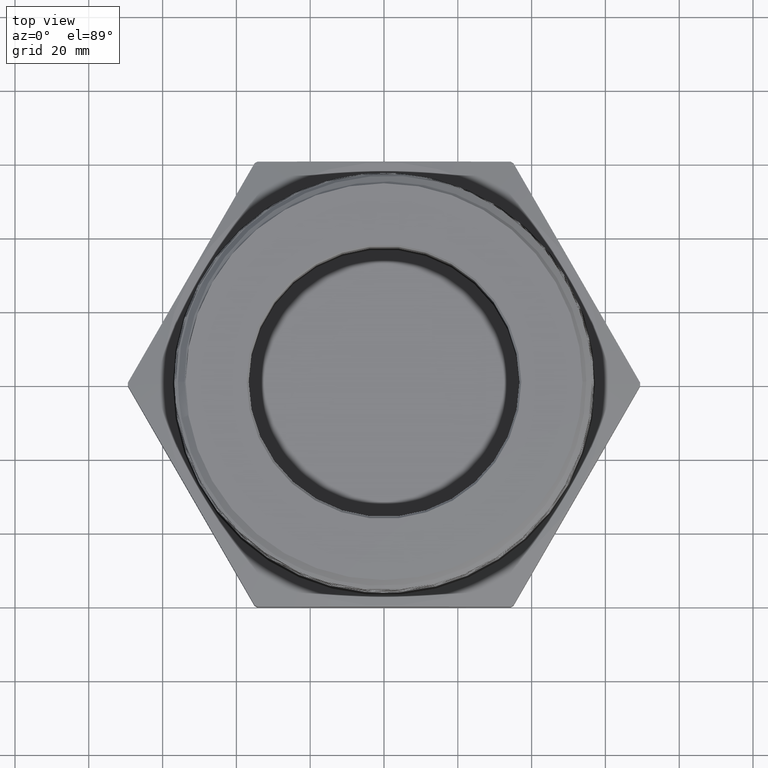
[diagram: clean part render]
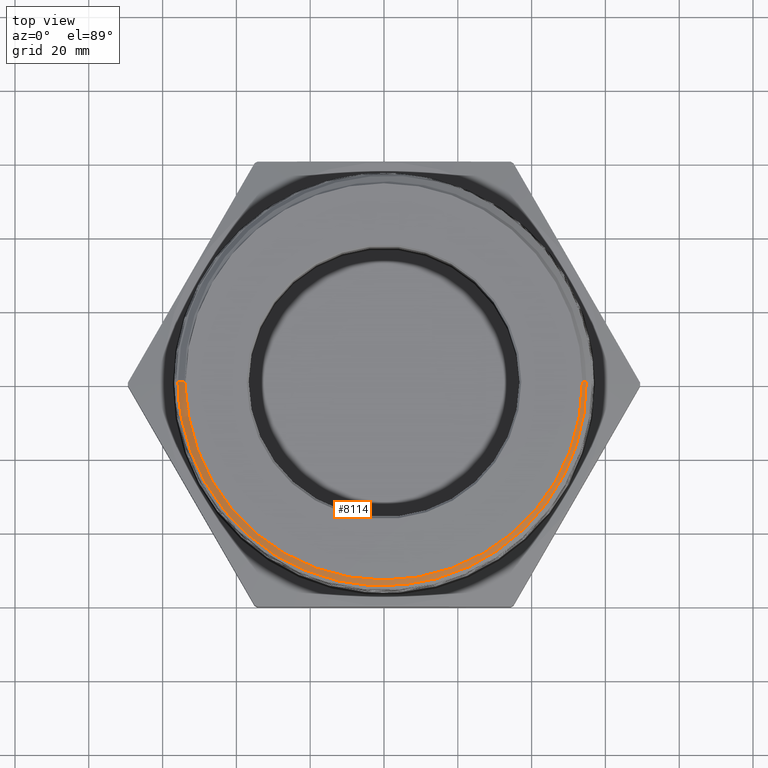
[diagram: same view with one face highlighted and labeled with its STEP entity id]
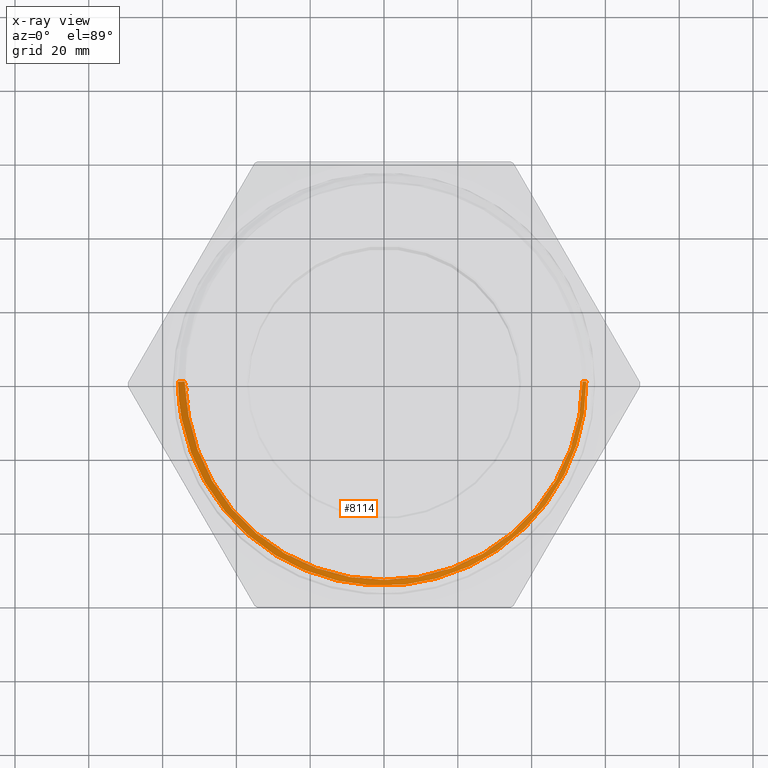
[diagram: x-ray of the same camera — body ghosted, the highlighted face saturated]
A machine part, top view. The second image highlights one B-rep face of the part: STEP entity #8114.
The next image is the same camera in x-ray: the body ghosted, the highlighted face saturated — about 0% of this face is hidden behind the body in this view.
In plain terms, the highlighted conical surface has half-angle 45 deg.
Its self-contained STEP definition (entity closure, byte-faithful):
#386 = AXIS2_PLACEMENT_3D ( 'NONE', #7641, #7642, #7640 ) ;
#690 = AXIS2_PLACEMENT_3D ( 'NONE', #2458, #2459, #2460 ) ;
#1957 = VERTEX_POINT ( 'NONE', #2647 ) ;
#1963 = VERTEX_POINT ( 'NONE', #2653 ) ;
#1964 = VERTEX_POINT ( 'NONE', #2654 ) ;
#1965 = VERTEX_POINT ( 'NONE', #2655 ) ;
#1967 = VERTEX_POINT ( 'NONE', #2657 ) ;
#1969 = VERTEX_POINT ( 'NONE', #2659 ) ;
#1972 = VERTEX_POINT ( 'NONE', #2662 ) ;
#2087 = ORIENTED_EDGE ( 'NONE', *, *, #3682, .T. ) ;
#2088 = ORIENTED_EDGE ( 'NONE', *, *, #3683, .F. ) ;
#2369 = DIRECTION ( 'NONE',  ( 0.7071067811865510100, 8.659560562354976000E-017, -0.7071067811865440200 ) ) ;
#2374 = CARTESIAN_POINT ( 'NONE',  ( 2.365952142250428800, 2.897455717942810700E-016, 1.921237857749573000 ) ) ;
#2451 = CARTESIAN_POINT ( 'NONE',  ( -2.126273115848336100, -2.561107494060246600E-016, 2.160916884151663300 ) ) ;
#2454 = CARTESIAN_POINT ( 'NONE',  ( -2.365952142250428800, 0.0000000000000000000, 1.921237857749573000 ) ) ;
#2455 = DIRECTION ( 'NONE',  ( -0.7071067811865510100, 0.0000000000000000000, -0.7071067811865440200 ) ) ;
#2456 = CARTESIAN_POINT ( 'NONE',  ( -2.090551265721161100, -0.3442657029160020000, 2.168482028426059700 ) ) ;
#2457 = CARTESIAN_POINT ( 'NONE',  ( -2.109309430332243700, -0.2304863166956607200, 2.168460994660383000 ) ) ;
#2458 = CARTESIAN_POINT ( 'NONE',  ( 0.0000000000000000000, 0.0000000000000000000, 2.169999999999999900 ) ) ;
#2459 = DIRECTION ( 'NONE',  ( -0.0000000000000000000, -0.0000000000000000000, 1.000000000000000000 ) ) ;
#2460 = DIRECTION ( 'NONE',  ( 1.000000000000000000, 0.0000000000000000000, 0.0000000000000000000 ) ) ;
#2461 = CARTESIAN_POINT ( 'NONE',  ( -2.123770115113994700, -0.1147659623215417400, 2.163419884886004700 ) ) ;
#2462 = CARTESIAN_POINT ( 'NONE',  ( -2.118766093896505200, -0.1152894655081384100, 2.168423906103494700 ) ) ;
#2463 = CARTESIAN_POINT ( 'NONE',  ( -2.118793873181037000, -2.561107494060246600E-016, 2.168396126818962000 ) ) ;
#2464 = CARTESIAN_POINT ( 'NONE',  ( 2.158410005699266800, -0.07103399825055706200, 2.128779994300698400 ) ) ;
#2465 = CARTESIAN_POINT ( 'NONE',  ( 2.157988691224699700, -1.083345630056351400E-012, 2.129201308775299700 ) ) ;
#2466 = CARTESIAN_POINT ( 'NONE',  ( -2.112045325650973500, -0.2295219104296485300, 2.165918163142028300 ) ) ;
#2467 = CARTESIAN_POINT ( 'NONE',  ( -2.090551265721161100, -0.3442657029160020000, 2.168482028426059700 ) ) ;
#2468 = CARTESIAN_POINT ( 'NONE',  ( -2.365952142250428800, 0.0000000000000000000, 1.921237857749573000 ) ) ;
#2469 = DIRECTION ( 'NONE',  ( -0.7071067811865510100, 0.0000000000000000000, -0.7071067811865440200 ) ) ;
#2472 = CARTESIAN_POINT ( 'NONE',  ( 2.155331088833250400, -0.1422931225138161200, 2.128360698266322800 ) ) ;
#2473 = CARTESIAN_POINT ( 'NONE',  ( 2.145302996054730300, -0.2495296726293667100, 2.127722210912041500 ) ) ;
#2474 = CARTESIAN_POINT ( 'NONE',  ( 2.141059379698197600, -0.2852498387821115200, 2.127508468492275800 ) ) ;
#2475 = CARTESIAN_POINT ( 'NONE',  ( 2.130864202773298500, -0.3560306328158861500, 2.127083141119943100 ) ) ;
#2476 = CARTESIAN_POINT ( 'NONE',  ( 2.124904984253900500, -0.3911802875291775000, 2.126871036496598600 ) ) ;
#2477 = CARTESIAN_POINT ( 'NONE',  ( 2.090863008216183000, -0.5657422755863469300, 2.125817872083261700 ) ) ;
#2478 = CARTESIAN_POINT ( 'NONE',  ( 2.050182573831986300, -0.7016347534248080800, 2.124981313803183000 ) ) ;
#2479 = CARTESIAN_POINT ( 'NONE',  ( 1.982352449784978900, -0.8667560695433042000, 2.123925632233866000 ) ) ;
#2480 = CARTESIAN_POINT ( 'NONE',  ( 1.967928932342085900, -0.8995407448648865500, 2.123714791984807200 ) ) ;
#2481 = CARTESIAN_POINT ( 'NONE',  ( 1.937332665192826700, -0.9646213335205686700, 2.123290900230931000 ) ) ;
#2482 = CARTESIAN_POINT ( 'NONE',  ( 1.921275626372229900, -0.9966693577098307800, 2.123079453047134200 ) ) ;
#2483 = CARTESIAN_POINT ( 'NONE',  ( 1.870936057429065400, -1.091246122713398500, 2.122445602918251700 ) ) ;
#2569 = CARTESIAN_POINT ( 'NONE',  ( 1.834465169501656700, -1.152266467034364500, 2.122022633242043500 ) ) ;
#2647 = CARTESIAN_POINT ( 'NONE',  ( -2.118793873181037000, -2.561107494060246600E-016, 2.168396126818962000 ) ) ;
#2653 = CARTESIAN_POINT ( 'NONE',  ( 2.117189999999999500, 2.642711384879268900E-016, 2.169999999999999900 ) ) ;
#2654 = CARTESIAN_POINT ( 'NONE',  ( -2.117189999999999500, 0.0000000000000000000, 2.169999999999999900 ) ) ;
#2655 = CARTESIAN_POINT ( 'NONE',  ( -2.090551265721161100, -0.3442657029160020000, 2.168482028426059700 ) ) ;
#2657 = CARTESIAN_POINT ( 'NONE',  ( 2.157988691224699700, -1.083345630056351400E-012, 2.129201308775299700 ) ) ;
#2659 = CARTESIAN_POINT ( 'NONE',  ( -2.126273115848336100, -2.561107494060246600E-016, 2.160916884151663300 ) ) ;
#2662 = CARTESIAN_POINT ( 'NONE',  ( -2.198199161816874400, -8.110173731190781100E-016, 2.088990838183126400 ) ) ;
#2794 = CARTESIAN_POINT ( 'NONE',  ( 1.755814375672600600, -1.270324616974911800, 2.121184918930704800 ) ) ;
#2795 = CARTESIAN_POINT ( 'NONE',  ( 1.713635130469317400, -1.327362876043925100, 2.120769145365003700 ) ) ;
#2796 = CARTESIAN_POINT ( 'NONE',  ( 1.646059768117905000, -1.409916014414202200, 2.120138693155186400 ) ) ;
#2797 = CARTESIAN_POINT ( 'NONE',  ( 1.622815462701444600, -1.436932018760046700, 2.119927598019315500 ) ) ;
#2798 = CARTESIAN_POINT ( 'NONE',  ( 1.574866285158989600, -1.489945128534545100, 2.119503913710599100 ) ) ;
#2799 = CARTESIAN_POINT ( 'NONE',  ( 1.550110700218499700, -1.515992517149452600, 2.119290935042864800 ) ) ;
#2800 = CARTESIAN_POINT ( 'NONE',  ( 1.423175544001725700, -1.643043949773524100, 2.118231765352802700 ) ) ;
#2801 = CARTESIAN_POINT ( 'NONE',  ( 1.313246604068322600, -1.733069224013571900, 2.117395822058739000 ) ) ;
#2802 = CARTESIAN_POINT ( 'NONE',  ( 1.136248725666382200, -1.851330086078559100, 2.116141968915687100 ) ) ;
#2803 = CARTESIAN_POINT ( 'NONE',  ( 1.075216023926326600, -1.887932043361875800, 2.115725778294430100 ) ) ;
#2804 = CARTESIAN_POINT ( 'NONE',  ( 0.9805456914266392800, -1.938508731901822200, 2.115092868526207100 ) ) ;
#2805 = CARTESIAN_POINT ( 'NONE',  ( 0.9483757626806761400, -1.954686865022142300, 2.114880047649220000 ) ) ;
#2806 = CARTESIAN_POINT ( 'NONE',  ( 0.8834985514088584700, -1.985318894920357100, 2.114455776395709000 ) ) ;
#2807 = CARTESIAN_POINT ( 'NONE',  ( 0.8508045123698035900, -1.999773626894547400, 2.114244452451228300 ) ) ;
#2808 = CARTESIAN_POINT ( 'NONE',  ( 0.6860800666902657800, -2.067818230949733000, 2.113196048195703700 ) ) ;
#2809 = CARTESIAN_POINT ( 'NONE',  ( 0.5503285710658181200, -2.108860995126051300, 2.112363284461472800 ) ) ;
#2810 = CARTESIAN_POINT ( 'NONE',  ( 0.3756938088492684500, -2.143488896235536100, 2.111317146545436800 ) ) ;
#2811 = CARTESIAN_POINT ( 'NONE',  ( 0.3405171883566446800, -2.149572623581209800, 2.111108240777998200 ) ) ;
#2812 = CARTESIAN_POINT ( 'NONE',  ( 0.2696566243259607100, -2.160029386419501500, 2.110688438217587200 ) ) ;
#2813 = CARTESIAN_POINT ( 'NONE',  ( 0.2338872099814332300, -2.164407547262179300, 2.110477033038469200 ) ) ;
#2814 = CARTESIAN_POINT ( 'NONE',  ( 0.1268960001137817200, -2.174825556757361800, 2.109844568340107700 ) ) ;
#2815 = CARTESIAN_POINT ( 'NONE',  ( 0.05574086578404421900, -2.178210383764793700, 2.109423145974485900 ) ) ;
#2816 = CARTESIAN_POINT ( 'NONE',  ( -0.1572214551619965100, -2.177969531087013500, 2.108173325892419100 ) ) ;
#2817 = CARTESIAN_POINT ( 'NONE',  ( -0.2985311274584993600, -2.164065736030630100, 2.107341443190347400 ) ) ;
#2818 = CARTESIAN_POINT ( 'NONE',  ( -0.4743120296745360100, -2.128998665574605400, 2.106290617020289100 ) ) ;
#2819 = CARTESIAN_POINT ( 'NONE',  ( -0.5094588886384703300, -2.121078195368110800, 2.106080272960653600 ) ) ;
#2820 = CARTESIAN_POINT ( 'NONE',  ( -0.5788937782174001800, -2.103622934178169600, 2.105661630492499500 ) ) ;
#2821 = CARTESIAN_POINT ( 'NONE',  ( -0.6132773621054270500, -2.094071470364546400, 2.105452765304939100 ) ) ;
#2822 = CARTESIAN_POINT ( 'NONE',  ( -0.7154438932827360500, -2.062988447108906200, 2.104825924302070800 ) ) ;
#2823 = CARTESIAN_POINT ( 'NONE',  ( -0.7822451641129771800, -2.039034543540335900, 2.104407058110546300 ) ) ;
#2824 = CARTESIAN_POINT ( 'NONE',  ( -0.9132560371715443500, -1.984731492225040500, 2.103576551943132000 ) ) ;
#2825 = CARTESIAN_POINT ( 'NONE',  ( -0.9774661451556936300, -1.954383613032506700, 2.103163600699642800 ) ) ;
#2826 = CARTESIAN_POINT ( 'NONE',  ( -1.071809841124561800, -1.903997177546805900, 2.102536578311791100 ) ) ;
#2827 = CARTESIAN_POINT ( 'NONE',  ( -1.102928515121977000, -1.886389330262417500, 2.102326486163432300 ) ) ;
#2828 = CARTESIAN_POINT ( 'NONE',  ( -1.164494439956732300, -1.849516877823186700, 2.101904540079446700 ) ) ;
#2829 = CARTESIAN_POINT ( 'NONE',  ( -1.194907176029258400, -1.830265966896049700, 2.101692942769072000 ) ) ;
#2830 = CARTESIAN_POINT ( 'NONE',  ( -1.343620809245273300, -1.730931213549554000, 2.100646783584797700 ) ) ;
#2831 = CARTESIAN_POINT ( 'NONE',  ( -1.453319022376300800, -1.640927808825173800, 2.099818756625690100 ) ) ;
#2832 = CARTESIAN_POINT ( 'NONE',  ( -1.604253836159803500, -1.490456367805222700, 2.098573146687009700 ) ) ;
#2833 = CARTESIAN_POINT ( 'NONE',  ( -1.652279322084109900, -1.437701747475326900, 2.098159377525259400 ) ) ;
#2834 = CARTESIAN_POINT ( 'NONE',  ( -1.720781882988033300, -1.354552716942155600, 2.097529341334330800 ) ) ;
#2835 = CARTESIAN_POINT ( 'NONE',  ( -1.742944440946772900, -1.326257388882511500, 2.097318659415026600 ) ) ;
#2836 = CARTESIAN_POINT ( 'NONE',  ( -1.785635517901552800, -1.268919463282668600, 2.096899309335440900 ) ) ;
#2837 = CARTESIAN_POINT ( 'NONE',  ( -1.806212732860441600, -1.239818333782116300, 2.096690216174814200 ) ) ;
#2838 = CARTESIAN_POINT ( 'NONE',  ( -1.905311167430492800, -1.092182183880566100, 2.095652087833915500 ) ) ;
#2839 = CARTESIAN_POINT ( 'NONE',  ( -1.972591908792584500, -0.9673246490074237600, 2.094826958682002500 ) ) ;
#2840 = CARTESIAN_POINT ( 'NONE',  ( -2.041546964681548300, -0.8027336214231535200, 2.093785906115009300 ) ) ;
#2841 = CARTESIAN_POINT ( 'NONE',  ( -2.054573244862035500, -0.7693852715015032700, 2.093578040989361200 ) ) ;
#2842 = CARTESIAN_POINT ( 'NONE',  ( -2.079066734540005300, -0.7018116472949995600, 2.093160240138503000 ) ) ;
#2843 = CARTESIAN_POINT ( 'NONE',  ( -2.090464944188297600, -0.6677712421181549700, 2.092951443415284300 ) ) ;
#2844 = CARTESIAN_POINT ( 'NONE',  ( -2.122044436649070100, -0.5652209093128913700, 2.092325498139157700 ) ) ;
#2845 = CARTESIAN_POINT ( 'NONE',  ( -2.139667390322186800, -0.4961460276175085300, 2.091907212245251600 ) ) ;
#2846 = CARTESIAN_POINT ( 'NONE',  ( -2.168137603453309300, -0.3565976459293263600, 2.091077151152277700 ) ) ;
#2847 = CARTESIAN_POINT ( 'NONE',  ( -2.178985078286467000, -0.2861241916846868300, 2.090665159543330500 ) ) ;
#2848 = CARTESIAN_POINT ( 'NONE',  ( -2.193818548536882900, -0.1437610559410860700, 2.089831263837269100 ) ) ;
#2849 = CARTESIAN_POINT ( 'NONE',  ( -2.197781326248941200, -0.07176012101515082100, 2.089408673751059100 ) ) ;
#2850 = CARTESIAN_POINT ( 'NONE',  ( -2.198199161816874400, -8.110173731190781100E-016, 2.088990838183126400 ) ) ;
#3299 = LINE ( 'NONE', #2374, #3313 ) ;
#3309 = LINE ( 'NONE', #2454, #3317 ) ;
#3311 = CIRCLE ( 'NONE', #690, 2.117189999999999500 ) ;
#3313 = VECTOR ( 'NONE', #2369, 39.37007874015748100 ) ;
#3317 = VECTOR ( 'NONE', #2455, 39.37007874015748100 ) ;
#3320 = LINE ( 'NONE', #2468, #3324 ) ;
#3324 = VECTOR ( 'NONE', #2469, 39.37007874015748100 ) ;
#3583 = FACE_OUTER_BOUND ( 'NONE', #7904, .T. ) ;
#3589 = CONICAL_SURFACE ( 'NONE', #386, 2.365952142250428800, 0.7853981633974532800 ) ;
#3675 = EDGE_CURVE ( 'NONE', #1963, #1967, #3299, .T. ) ;
#3678 = EDGE_CURVE ( 'NONE', #1964, #1957, #3309, .T. ) ;
#3679 = EDGE_CURVE ( 'NONE', #1964, #1963, #3311, .T. ) ;
#3680 = EDGE_CURVE ( 'NONE', #1965, #1957, #7748, .T. ) ;
#3681 = EDGE_CURVE ( 'NONE', #1969, #1965, #7731, .T. ) ;
#3682 = EDGE_CURVE ( 'NONE', #1969, #1972, #3320, .T. ) ;
#3683 = EDGE_CURVE ( 'NONE', #1967, #1972, #7746, .T. ) ;
#7640 = DIRECTION ( 'NONE',  ( -1.000000000000000000, 0.0000000000000000000, 0.0000000000000000000 ) ) ;
#7641 = CARTESIAN_POINT ( 'NONE',  ( 0.0000000000000000000, 0.0000000000000000000, 1.921237857749573000 ) ) ;
#7642 = DIRECTION ( 'NONE',  ( 0.0000000000000000000, 0.0000000000000000000, -1.000000000000000000 ) ) ;
#7731 = B_SPLINE_CURVE_WITH_KNOTS ( 'NONE', 3,
 ( #2451, #2461, #2466, #2467 ),
 .UNSPECIFIED., .F., .F.,
 ( 4, 4 ),
 ( 0.1116461931724698900, 0.1205278137887863700 ),
 .UNSPECIFIED. ) ;
#7746 = B_SPLINE_CURVE_WITH_KNOTS ( 'NONE', 3,
 ( #2465, #2464, #2472, #2473, #2474, #2475, #2476, #2477, #2478, #2479, #2480, #2481, #2482, #2483, #2569, #2794, #2795, #2796, #2797, #2798, #2799, #2800, #2801, #2802, #2803, #2804, #2805, #2806, #2807, #2808, #2809, #2810, #2811, #2812, #2813, #2814, #2815, #2816, #2817, #2818, #2819, #2820, #2821, #2822, #2823, #2824, #2825, #2826, #2827, #2828, #2829, #2830, #2831, #2832, #2833, #2834, #2835, #2836, #2837, #2838, #2839, #2840, #2841, #2842, #2843, #2844, #2845, #2846, #2847, #2848, #2849, #2850 ),
 .UNSPECIFIED., .F., .F.,
 ( 4, 2, 2, 2, 2, 2, 2, 2, 2, 2, 2, 2, 2, 2, 2, 2, 2, 2, 2, 2, 2, 2, 2, 2, 2, 2, 2, 2, 2, 2, 2, 2, 2, 2, 2, 4 ),
 ( 0.1673629928502143000, 0.1728369310331981700, 0.1755739001246901000, 0.1783108692161820300, 0.1892587455821497500, 0.1919957146736416800, 0.1947326837651335900, 0.2002066219481174500, 0.2056805601311013100, 0.2084175292225932400, 0.2111544983140851700, 0.2221023746800529200, 0.2275763128630368100, 0.2303132819545287700, 0.2330502510460206700, 0.2439981274119884800, 0.2467350965034804100, 0.2494720655949723400, 0.2549460037779562300, 0.2658938801439240100, 0.2686308492354159700, 0.2713678183269079300, 0.2768417565098917900, 0.2823156946928756500, 0.2850526637843675500, 0.2877896328758595100, 0.2987375092418271800, 0.3042114474248111000, 0.3069484165163030000, 0.3096853856077949100, 0.3206332619737626300, 0.3233702310652545300, 0.3261072001567464400, 0.3315811383397303000, 0.3370550765227141600, 0.3425290147056979700 ),
 .UNSPECIFIED. ) ;
#7748 = B_SPLINE_CURVE_WITH_KNOTS ( 'NONE', 3,
 ( #2456, #2457, #2462, #2463 ),
 .UNSPECIFIED., .F., .F.,
 ( 4, 4 ),
 ( 0.0000000000000000000, 0.008787003462913988200 ),
 .UNSPECIFIED. ) ;
#7904 = EDGE_LOOP ( 'NONE', ( #7959, #7960, #7961, #7962, #7963, #2087, #2088 ) ) ;
#7959 = ORIENTED_EDGE ( 'NONE', *, *, #3675, .F. ) ;
#7960 = ORIENTED_EDGE ( 'NONE', *, *, #3679, .F. ) ;
#7961 = ORIENTED_EDGE ( 'NONE', *, *, #3678, .T. ) ;
#7962 = ORIENTED_EDGE ( 'NONE', *, *, #3680, .F. ) ;
#7963 = ORIENTED_EDGE ( 'NONE', *, *, #3681, .F. ) ;
#8114 = ADVANCED_FACE ( 'NONE', ( #3583 ), #3589, .T. ) ;